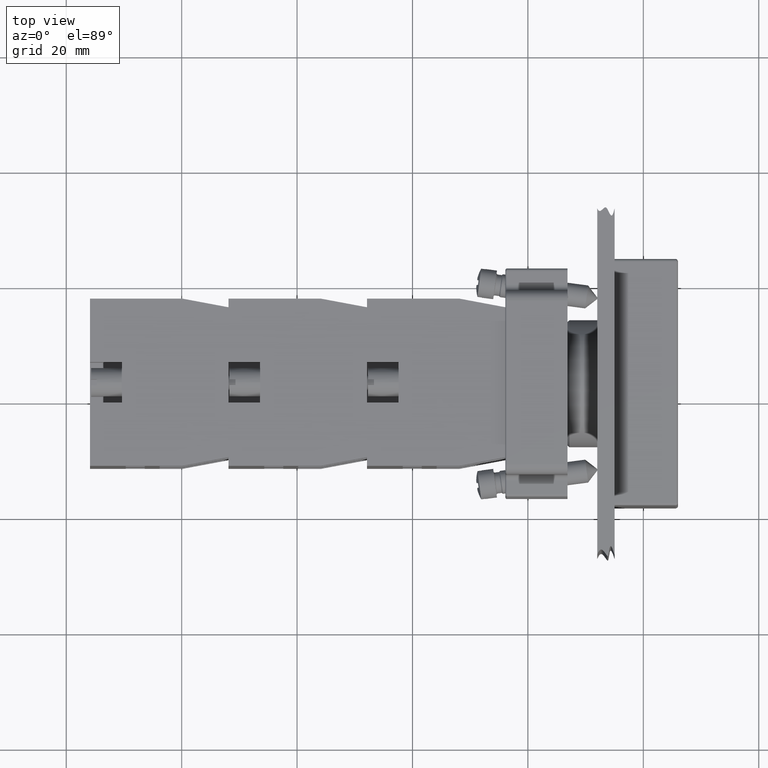
[diagram: clean part render]
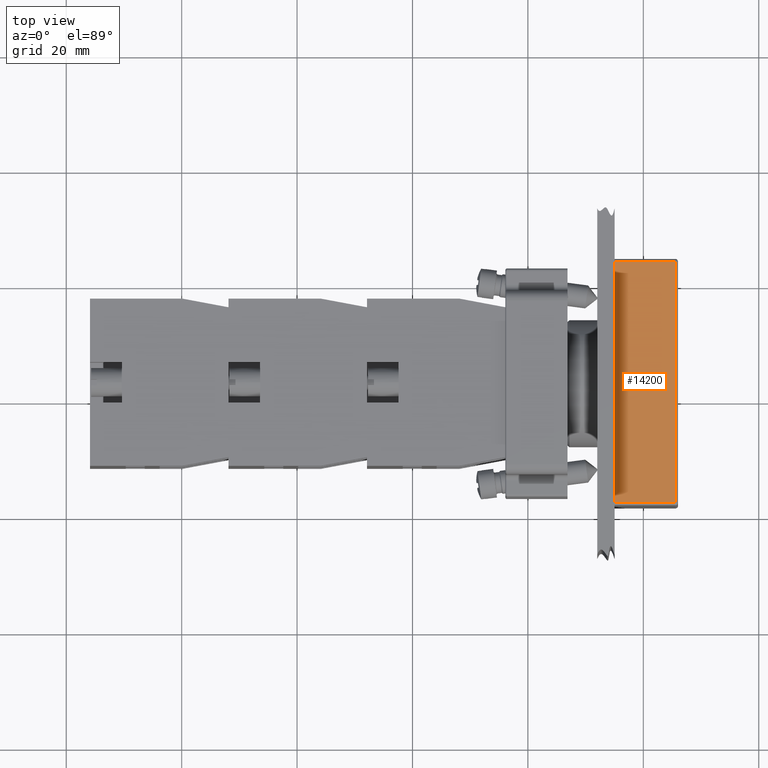
[diagram: same view with one face highlighted and labeled with its STEP entity id]
A machine part, top view. The second image highlights one B-rep face of the part: STEP entity #14200.
In plain terms, the highlighted planar face has unit normal (0, 0, 1).
Its self-contained STEP definition (entity closure, byte-faithful):
#13244=CARTESIAN_POINT('',(2.060615972896345,-20.906685679495368,14.999999999999991));
#13245=VERTEX_POINT('',#13244);
#13263=CARTESIAN_POINT('',(2.060615972896345,20.843314320504650,14.999999999999993));
#13264=VERTEX_POINT('',#13263);
#13272=CARTESIAN_POINT('',(2.060615972896345,20.843314320504650,14.999999999999993));
#13273=DIRECTION('',(0.0,-1.0,0.0));
#13274=VECTOR('',#13273,41.750000000000014);
#13275=LINE('',#13272,#13274);
#13276=EDGE_CURVE('',#13264,#13245,#13275,.T.);
#14158=CARTESIAN_POINT('',(-8.439384027103658,-20.906685679495368,14.999999999999991));
#14159=VERTEX_POINT('',#14158);
#14160=CARTESIAN_POINT('',(-8.439384027103658,-20.906685679495368,14.999999999999991));
#14161=DIRECTION('',(1.0,0.0,0.0));
#14162=VECTOR('',#14161,10.500000000000004);
#14163=LINE('',#14160,#14162);
#14164=EDGE_CURVE('',#14159,#13245,#14163,.T.);
#14177=CARTESIAN_POINT('',(-8.439384027103658,-20.906685679495368,14.999999999999991));
#14178=DIRECTION('',(0.0,0.0,1.0));
#14179=DIRECTION('',(1.0,0.0,0.0));
#14180=AXIS2_PLACEMENT_3D('',#14177,#14178,#14179);
#14181=PLANE('',#14180);
#14182=ORIENTED_EDGE('',*,*,#13276,.F.);
#14183=CARTESIAN_POINT('',(-8.439384027103658,20.843314320504650,14.999999999999993));
#14184=VERTEX_POINT('',#14183);
#14185=CARTESIAN_POINT('',(-8.439384027103658,20.843314320504650,14.999999999999993));
#14186=DIRECTION('',(1.0,0.0,0.0));
#14187=VECTOR('',#14186,10.500000000000004);
#14188=LINE('',#14185,#14187);
#14189=EDGE_CURVE('',#14184,#13264,#14188,.T.);
#14190=ORIENTED_EDGE('',*,*,#14189,.F.);
#14191=CARTESIAN_POINT('',(-8.439384027103658,-20.906685679495368,14.999999999999991));
#14192=DIRECTION('',(0.0,1.0,0.0));
#14193=VECTOR('',#14192,41.750000000000014);
#14194=LINE('',#14191,#14193);
#14195=EDGE_CURVE('',#14159,#14184,#14194,.T.);
#14196=ORIENTED_EDGE('',*,*,#14195,.F.);
#14197=ORIENTED_EDGE('',*,*,#14164,.T.);
#14198=EDGE_LOOP('',(#14182,#14190,#14196,#14197));
#14199=FACE_OUTER_BOUND('',#14198,.T.);
#14200=ADVANCED_FACE('',(#14199),#14181,.T.);